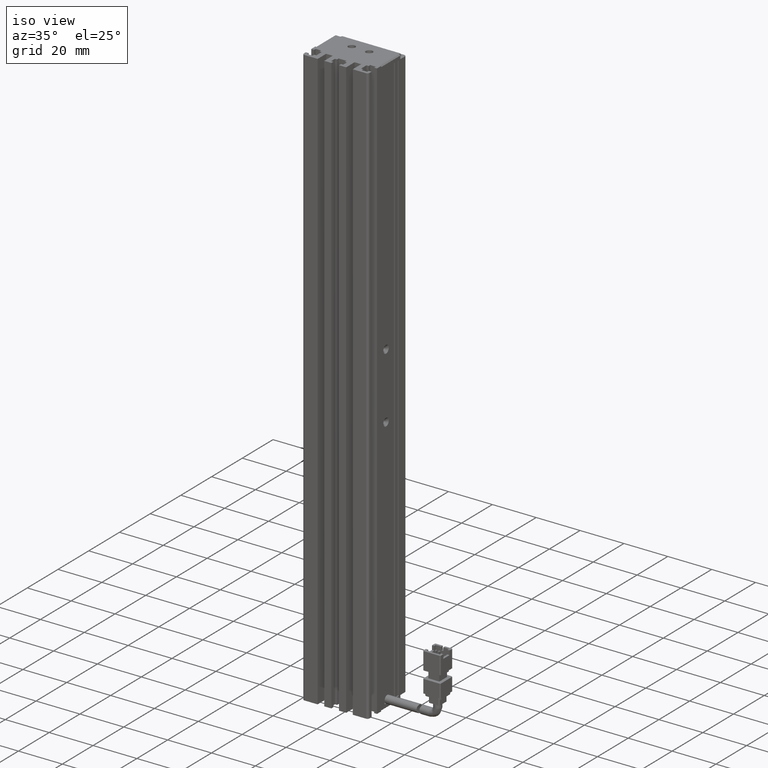
[diagram: clean part render]
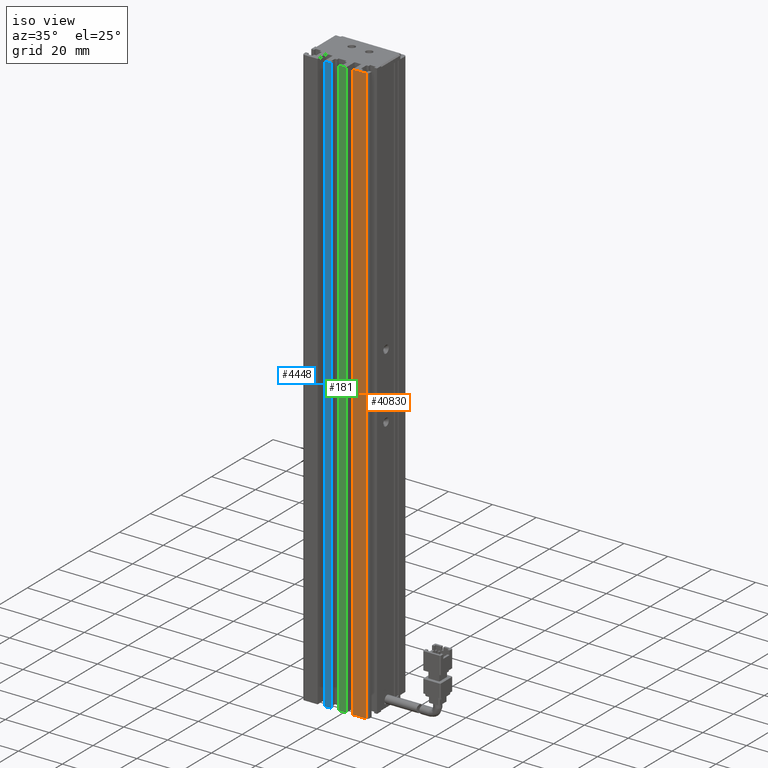
[diagram: same view with three faces highlighted in distinct colors, each labeled with its STEP entity id]
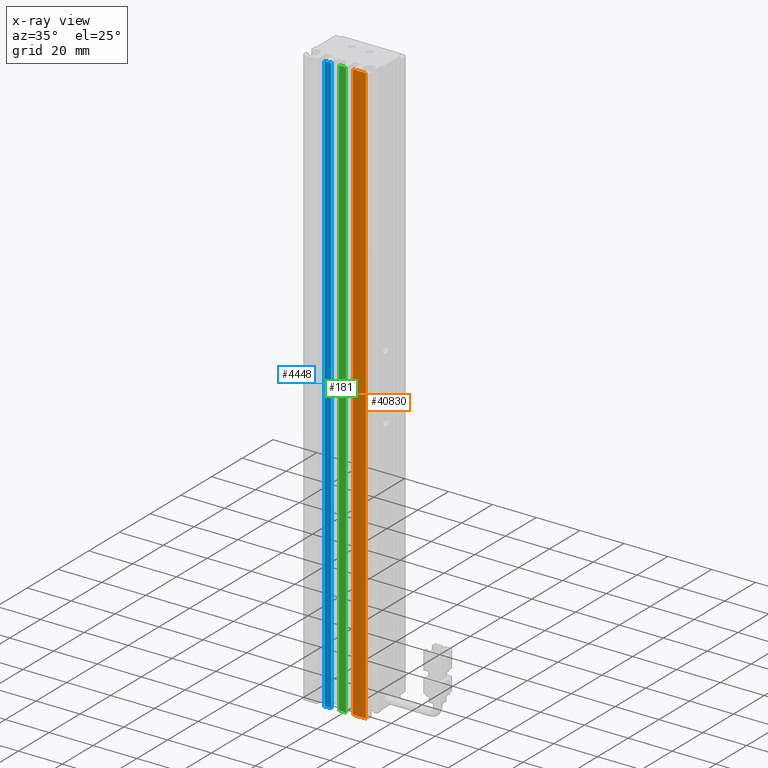
[diagram: x-ray of the same camera — body ghosted, the three highlighted faces saturated]
A machine part, iso view with three faces highlighted in distinct colors.
The next image is the same camera in x-ray (body ghosted, the three faces saturated) — at least one of them is partly hidden behind the body in this view.
Their STEP definitions:

[orange] entity #40830 — the highlighted planar face has unit normal (0, 1, -0).
#1043 = AXIS2_PLACEMENT_3D ( 'NONE', #41332, #15743, #45645 ) ;
#4933 = VERTEX_POINT ( 'NONE', #25563 ) ;
#6659 = CARTESIAN_POINT ( 'NONE',  ( 40.92537974683542500, 10.69594479660387000, -248.0000000000000000 ) ) ;
#7654 = VERTEX_POINT ( 'NONE', #21803 ) ;
#9008 = EDGE_LOOP ( 'NONE', ( #37622, #22741, #20464, #44841 ) ) ;
#11101 = DIRECTION ( 'NONE',  ( 0.0000000000000000000, 0.0000000000000000000, 1.000000000000000000 ) ) ;
#12480 = LINE ( 'NONE', #49468, #22530 ) ;
#15743 = DIRECTION ( 'NONE',  ( 3.614007241618344800E-016, 1.000000000000000000, -0.0000000000000000000 ) ) ;
#19446 = DIRECTION ( 'NONE',  ( 1.000000000000000000, 0.0000000000000000000, 0.0000000000000000000 ) ) ;
#20464 = ORIENTED_EDGE ( 'NONE', *, *, #40189, .F. ) ;
#21803 = CARTESIAN_POINT ( 'NONE',  ( 54.92537974683542500, 10.69594479660386800, 18.00000000000000400 ) ) ;
#22530 = VECTOR ( 'NONE', #11101, 1000.000000000000000 ) ;
#22741 = ORIENTED_EDGE ( 'NONE', *, *, #40275, .F. ) ;
#25008 = LINE ( 'NONE', #6659, #41073 ) ;
#25563 = CARTESIAN_POINT ( 'NONE',  ( 54.92537974683542500, 10.69594479660386800, -248.0000000000000000 ) ) ;
#30565 = CARTESIAN_POINT ( 'NONE',  ( 48.92537974683541800, 10.69594479660387000, 18.00000000000000400 ) ) ;
#31704 = FACE_OUTER_BOUND ( 'NONE', #9008, .T. ) ;
#31848 = LINE ( 'NONE', #34013, #41928 ) ;
#32039 = EDGE_CURVE ( 'NONE', #35584, #4933, #25008, .T. ) ;
#33210 = LINE ( 'NONE', #50213, #44592 ) ;
#33544 = EDGE_CURVE ( 'NONE', #7654, #4933, #31848, .T. ) ;
#34013 = CARTESIAN_POINT ( 'NONE',  ( 54.92537974683542500, 10.69594479660386800, 18.00000000000000400 ) ) ;
#34311 = VERTEX_POINT ( 'NONE', #30565 ) ;
#35584 = VERTEX_POINT ( 'NONE', #54193 ) ;
#37622 = ORIENTED_EDGE ( 'NONE', *, *, #33544, .F. ) ;
#38356 = DIRECTION ( 'NONE',  ( -0.0000000000000000000, -0.0000000000000000000, -1.000000000000000000 ) ) ;
#40189 = EDGE_CURVE ( 'NONE', #35584, #34311, #12480, .T. ) ;
#40275 = EDGE_CURVE ( 'NONE', #34311, #7654, #33210, .T. ) ;
#40830 = ADVANCED_FACE ( 'NONE', ( #31704 ), #41155, .F. ) ;
#41073 = VECTOR ( 'NONE', #19446, 1000.000000000000000 ) ;
#41155 = PLANE ( 'NONE',  #1043 ) ;
#41332 = CARTESIAN_POINT ( 'NONE',  ( 40.92537974683542500, 10.69594479660387300, 18.00000000000000400 ) ) ;
#41928 = VECTOR ( 'NONE', #38356, 1000.000000000000000 ) ;
#44592 = VECTOR ( 'NONE', #50023, 1000.000000000000000 ) ;
#44841 = ORIENTED_EDGE ( 'NONE', *, *, #32039, .T. ) ;
#45645 = DIRECTION ( 'NONE',  ( -1.000000000000000000, 3.614007241618344800E-016, 0.0000000000000000000 ) ) ;
#49468 = CARTESIAN_POINT ( 'NONE',  ( 48.92537974683541800, 10.69594479660387000, 18.00000000000000400 ) ) ;
#50023 = DIRECTION ( 'NONE',  ( 1.000000000000000000, 0.0000000000000000000, 0.0000000000000000000 ) ) ;
#50213 = CARTESIAN_POINT ( 'NONE',  ( 40.92537974683542500, 10.69594479660387000, 18.00000000000000400 ) ) ;
#54193 = CARTESIAN_POINT ( 'NONE',  ( 48.92537974683541800, 10.69594479660387000, -248.0000000000000000 ) ) ;

[blue] entity #4448 — the highlighted planar face has unit normal (0, -1, 0).
#1693 = CARTESIAN_POINT ( 'NONE',  ( 39.17537974683542500, 10.69594479660386800, -248.0000000000000000 ) ) ;
#1839 = AXIS2_PLACEMENT_3D ( 'NONE', #10938, #4790, #48392 ) ;
#2125 = ORIENTED_EDGE ( 'NONE', *, *, #10008, .T. ) ;
#2412 = ORIENTED_EDGE ( 'NONE', *, *, #36985, .F. ) ;
#4448 = ADVANCED_FACE ( 'NONE', ( #16169 ), #51305, .T. ) ;
#4790 = DIRECTION ( 'NONE',  ( 0.0000000000000000000, -1.000000000000000000, 0.0000000000000000000 ) ) ;
#5144 = DIRECTION ( 'NONE',  ( 1.000000000000000000, 0.0000000000000000000, 0.0000000000000000000 ) ) ;
#5178 = EDGE_CURVE ( 'NONE', #44929, #52382, #53365, .T. ) ;
#6995 = LINE ( 'NONE', #35074, #49900 ) ;
#8574 = CARTESIAN_POINT ( 'NONE',  ( 39.17537974683542500, 10.69594479660386800, 18.00000000000000400 ) ) ;
#10008 = EDGE_CURVE ( 'NONE', #24913, #47701, #44988, .T. ) ;
#10938 = CARTESIAN_POINT ( 'NONE',  ( 40.92537974683542500, 10.69594479660386800, 18.00000000000000400 ) ) ;
#13025 = ORIENTED_EDGE ( 'NONE', *, *, #40688, .T. ) ;
#13662 = VECTOR ( 'NONE', #23207, 1000.000000000000000 ) ;
#16169 = FACE_OUTER_BOUND ( 'NONE', #22368, .T. ) ;
#16387 = DIRECTION ( 'NONE',  ( 0.0000000000000000000, -0.0000000000000000000, -1.000000000000000000 ) ) ;
#17927 = CARTESIAN_POINT ( 'NONE',  ( 35.92537974683543200, 10.69594479660386800, 18.00000000000000400 ) ) ;
#22368 = EDGE_LOOP ( 'NONE', ( #2412, #2125, #13025, #52127 ) ) ;
#23207 = DIRECTION ( 'NONE',  ( 1.000000000000000000, 0.0000000000000000000, 0.0000000000000000000 ) ) ;
#24913 = VERTEX_POINT ( 'NONE', #17927 ) ;
#25052 = LINE ( 'NONE', #35910, #13662 ) ;
#35074 = CARTESIAN_POINT ( 'NONE',  ( 40.92537974683542500, 10.69594479660386800, 18.00000000000000400 ) ) ;
#35910 = CARTESIAN_POINT ( 'NONE',  ( 40.92537974683542500, 10.69594479660386800, -248.0000000000000000 ) ) ;
#36415 = CARTESIAN_POINT ( 'NONE',  ( 35.92537974683543200, 10.69594479660386800, -248.0000000000000000 ) ) ;
#36985 = EDGE_CURVE ( 'NONE', #24913, #52382, #6995, .T. ) ;
#40688 = EDGE_CURVE ( 'NONE', #47701, #44929, #25052, .T. ) ;
#42009 = VECTOR ( 'NONE', #53983, 1000.000000000000000 ) ;
#43663 = VECTOR ( 'NONE', #16387, 1000.000000000000000 ) ;
#44929 = VERTEX_POINT ( 'NONE', #1693 ) ;
#44988 = LINE ( 'NONE', #47825, #43663 ) ;
#47701 = VERTEX_POINT ( 'NONE', #36415 ) ;
#47813 = CARTESIAN_POINT ( 'NONE',  ( 39.17537974683542500, 10.69594479660386800, 18.00000000000000400 ) ) ;
#47825 = CARTESIAN_POINT ( 'NONE',  ( 35.92537974683543200, 10.69594479660386800, 18.00000000000000400 ) ) ;
#48392 = DIRECTION ( 'NONE',  ( 0.0000000000000000000, -0.0000000000000000000, -1.000000000000000000 ) ) ;
#49900 = VECTOR ( 'NONE', #5144, 1000.000000000000000 ) ;
#51305 = PLANE ( 'NONE',  #1839 ) ;
#52127 = ORIENTED_EDGE ( 'NONE', *, *, #5178, .T. ) ;
#52382 = VERTEX_POINT ( 'NONE', #8574 ) ;
#53365 = LINE ( 'NONE', #47813, #42009 ) ;
#53983 = DIRECTION ( 'NONE',  ( -0.0000000000000000000, 0.0000000000000000000, 1.000000000000000000 ) ) ;

[green] entity #181 — the highlighted planar face has unit normal (0, 1, 0).
#181 = ADVANCED_FACE ( 'NONE', ( #286 ), #28316, .F. ) ;
#286 = FACE_OUTER_BOUND ( 'NONE', #21083, .T. ) ;
#348 = CARTESIAN_POINT ( 'NONE',  ( 40.92537974683542500, 10.69594479660386800, 18.00000000000000400 ) ) ;
#2449 = LINE ( 'NONE', #348, #46658 ) ;
#2513 = EDGE_CURVE ( 'NONE', #25002, #12700, #2449, .T. ) ;
#4538 = CARTESIAN_POINT ( 'NONE',  ( 45.92537974683541800, 10.69594479660386800, 18.00000000000000400 ) ) ;
#4542 = ORIENTED_EDGE ( 'NONE', *, *, #17911, .T. ) ;
#5707 = CARTESIAN_POINT ( 'NONE',  ( 42.67537974683542500, 10.69594479660386800, 18.00000000000000400 ) ) ;
#9481 = LINE ( 'NONE', #9743, #19566 ) ;
#9743 = CARTESIAN_POINT ( 'NONE',  ( 42.67537974683542500, 10.69594479660386800, 18.00000000000000400 ) ) ;
#12700 = VERTEX_POINT ( 'NONE', #47405 ) ;
#14064 = DIRECTION ( 'NONE',  ( 0.0000000000000000000, -0.0000000000000000000, 1.000000000000000000 ) ) ;
#15521 = ORIENTED_EDGE ( 'NONE', *, *, #41218, .F. ) ;
#16161 = DIRECTION ( 'NONE',  ( 0.0000000000000000000, -0.0000000000000000000, 1.000000000000000000 ) ) ;
#16369 = VERTEX_POINT ( 'NONE', #28180 ) ;
#17911 = EDGE_CURVE ( 'NONE', #16369, #12700, #23186, .T. ) ;
#18717 = AXIS2_PLACEMENT_3D ( 'NONE', #20085, #19879, #16161 ) ;
#18722 = LINE ( 'NONE', #47739, #40134 ) ;
#19566 = VECTOR ( 'NONE', #14064, 1000.000000000000000 ) ;
#19879 = DIRECTION ( 'NONE',  ( 0.0000000000000000000, 1.000000000000000000, 0.0000000000000000000 ) ) ;
#20085 = CARTESIAN_POINT ( 'NONE',  ( 40.92537974683542500, 10.69594479660386800, 18.00000000000000400 ) ) ;
#21083 = EDGE_LOOP ( 'NONE', ( #4542, #45250, #15521, #30926 ) ) ;
#21926 = DIRECTION ( 'NONE',  ( 1.000000000000000000, 0.0000000000000000000, 0.0000000000000000000 ) ) ;
#23186 = LINE ( 'NONE', #4538, #34538 ) ;
#25002 = VERTEX_POINT ( 'NONE', #5707 ) ;
#28180 = CARTESIAN_POINT ( 'NONE',  ( 45.92537974683541800, 10.69594479660386800, -248.0000000000000000 ) ) ;
#28316 = PLANE ( 'NONE',  #18717 ) ;
#29972 = VERTEX_POINT ( 'NONE', #47771 ) ;
#30926 = ORIENTED_EDGE ( 'NONE', *, *, #38965, .T. ) ;
#34538 = VECTOR ( 'NONE', #47214, 1000.000000000000000 ) ;
#38965 = EDGE_CURVE ( 'NONE', #29972, #16369, #18722, .T. ) ;
#40134 = VECTOR ( 'NONE', #52011, 1000.000000000000000 ) ;
#41218 = EDGE_CURVE ( 'NONE', #29972, #25002, #9481, .T. ) ;
#45250 = ORIENTED_EDGE ( 'NONE', *, *, #2513, .F. ) ;
#46658 = VECTOR ( 'NONE', #21926, 1000.000000000000000 ) ;
#47214 = DIRECTION ( 'NONE',  ( 0.0000000000000000000, 0.0000000000000000000, 1.000000000000000000 ) ) ;
#47405 = CARTESIAN_POINT ( 'NONE',  ( 45.92537974683541800, 10.69594479660386800, 18.00000000000000400 ) ) ;
#47739 = CARTESIAN_POINT ( 'NONE',  ( 40.92537974683542500, 10.69594479660386800, -248.0000000000000000 ) ) ;
#47771 = CARTESIAN_POINT ( 'NONE',  ( 42.67537974683542500, 10.69594479660386800, -248.0000000000000000 ) ) ;
#52011 = DIRECTION ( 'NONE',  ( 1.000000000000000000, 0.0000000000000000000, 0.0000000000000000000 ) ) ;